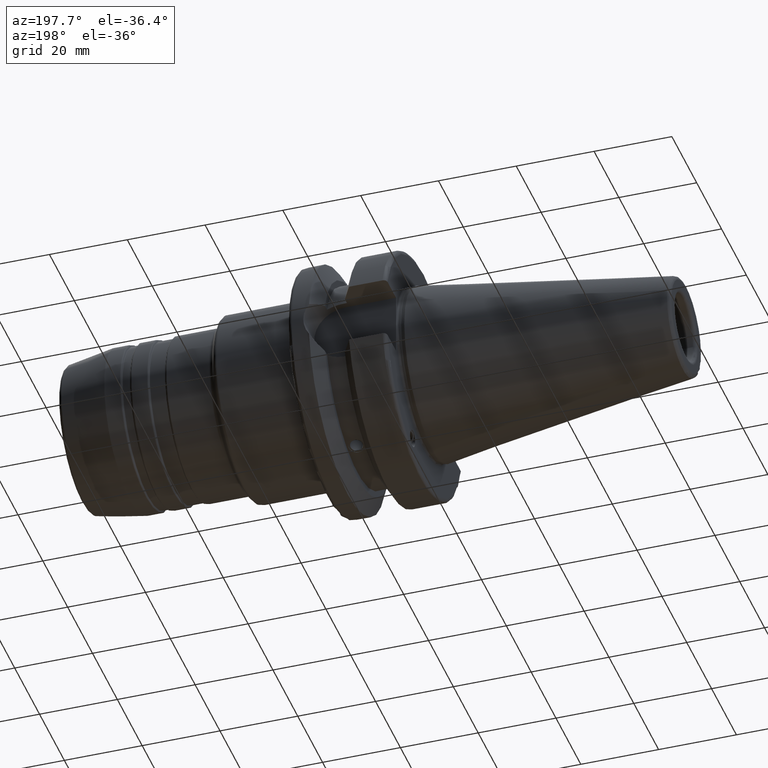
[diagram: clean part render]
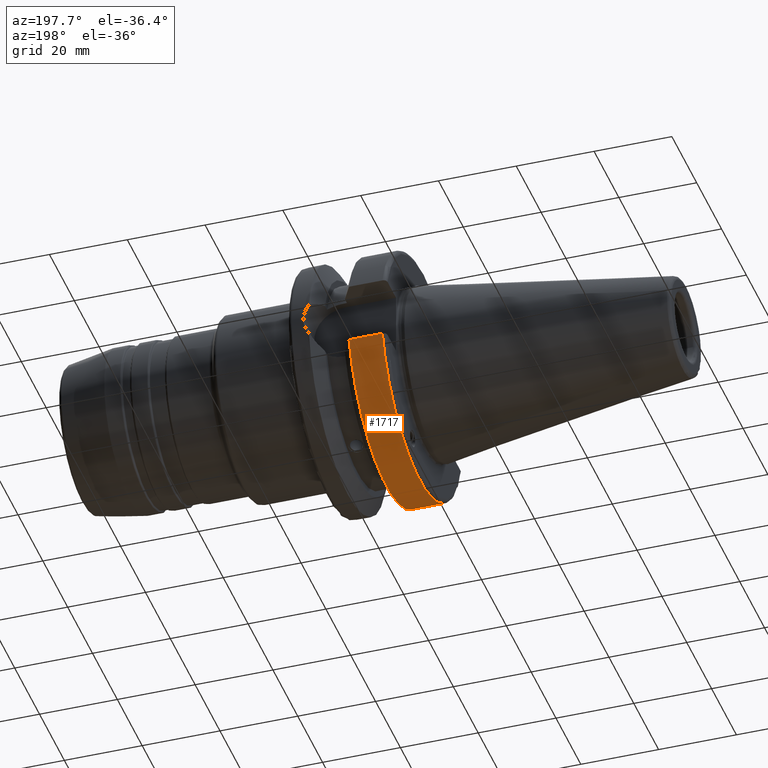
[diagram: same view with one face highlighted and labeled with its STEP entity id]
A machine part, auxiliary view. The second image highlights one B-rep face of the part: STEP entity #1717.
In plain terms, the highlighted cylindrical surface (partial cylindrical patch) has radius 31.5 mm, axis along (1, 0, 0).
Its self-contained STEP definition (entity closure, byte-faithful):
#198=FACE_OUTER_BOUND('',#299,.T.);
#299=EDGE_LOOP('',(#1464,#1465,#1466,#1467));
#376=LINE('',#3187,#446);
#383=LINE('',#3254,#453);
#446=VECTOR('',#2432,10.);
#453=VECTOR('',#2477,10.);
#585=CIRCLE('',#1959,31.5000000000001);
#586=CIRCLE('',#1961,31.5);
#760=VERTEX_POINT('',#3175);
#761=VERTEX_POINT('',#3186);
#773=VERTEX_POINT('',#3246);
#774=VERTEX_POINT('',#3252);
#998=EDGE_CURVE('',#761,#760,#376,.T.);
#1018=EDGE_CURVE('',#761,#773,#585,.T.);
#1020=EDGE_CURVE('',#760,#774,#586,.T.);
#1021=EDGE_CURVE('',#774,#773,#383,.T.);
#1464=ORIENTED_EDGE('',*,*,#998,.T.);
#1465=ORIENTED_EDGE('',*,*,#1020,.T.);
#1466=ORIENTED_EDGE('',*,*,#1021,.T.);
#1467=ORIENTED_EDGE('',*,*,#1018,.F.);
#1646=CYLINDRICAL_SURFACE('',#1960,31.5);
#1717=ADVANCED_FACE('',(#198),#1646,.T.);
#1959=AXIS2_PLACEMENT_3D('',#3247,#2471,#2472);
#1960=AXIS2_PLACEMENT_3D('',#3251,#2473,#2474);
#1961=AXIS2_PLACEMENT_3D('',#3253,#2475,#2476);
#2432=DIRECTION('',(-1.,0.,0.));
#2471=DIRECTION('center_axis',(1.,0.,0.));
#2472=DIRECTION('ref_axis',(0.,0.,-1.));
#2473=DIRECTION('center_axis',(1.,0.,0.));
#2474=DIRECTION('ref_axis',(0.,1.,0.));
#2475=DIRECTION('center_axis',(1.,0.,0.));
#2476=DIRECTION('ref_axis',(0.,0.,-1.));
#2477=DIRECTION('',(1.,0.,0.));
#3175=CARTESIAN_POINT('',(2.99999999999999,-30.4540227227866,-8.05));
#3186=CARTESIAN_POINT('',(11.5690363073382,-30.4540227227866,-8.05));
#3187=CARTESIAN_POINT('',(7.28451815366907,-30.4540227227866,-8.05));
#3246=CARTESIAN_POINT('',(11.5690363073382,30.4540227227866,-8.05));
#3247=CARTESIAN_POINT('Origin',(11.5690363073382,0.,0.));
#3251=CARTESIAN_POINT('Origin',(7.28451815366907,0.,0.));
#3252=CARTESIAN_POINT('',(2.99999999999999,30.4540227227866,-8.05));
#3253=CARTESIAN_POINT('Origin',(2.99999999999999,0.,0.));
#3254=CARTESIAN_POINT('',(7.28451815366907,30.4540227227866,-8.05));